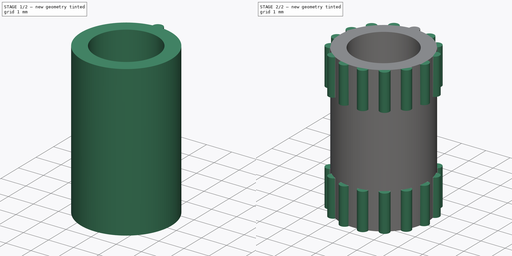
[diagram: build sequence overview — one tinted view per stage of 2, left to right]
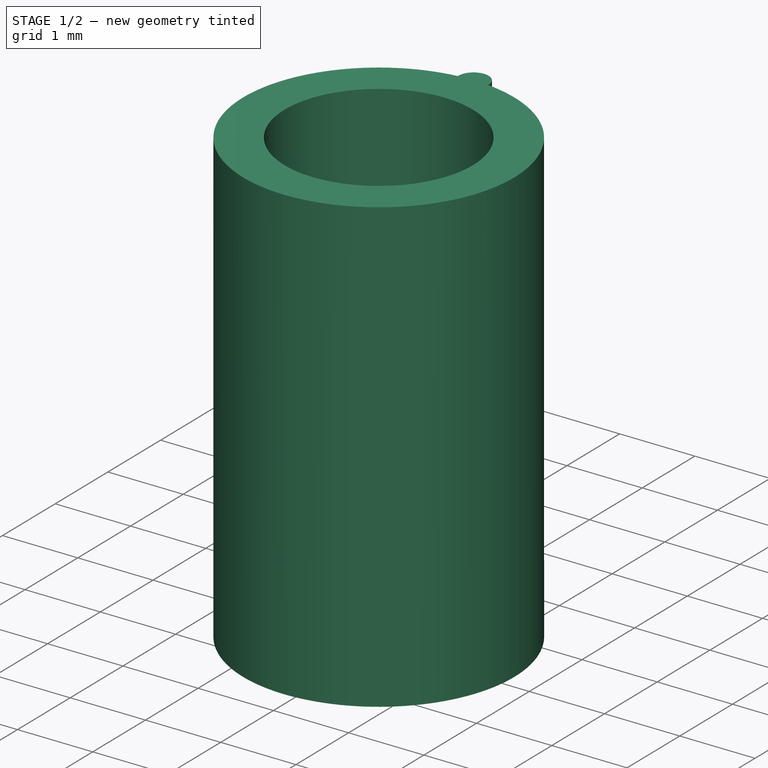
[diagram: stage 1 of 2 — iso view after this stage's code; geometry added in this stage tinted green]
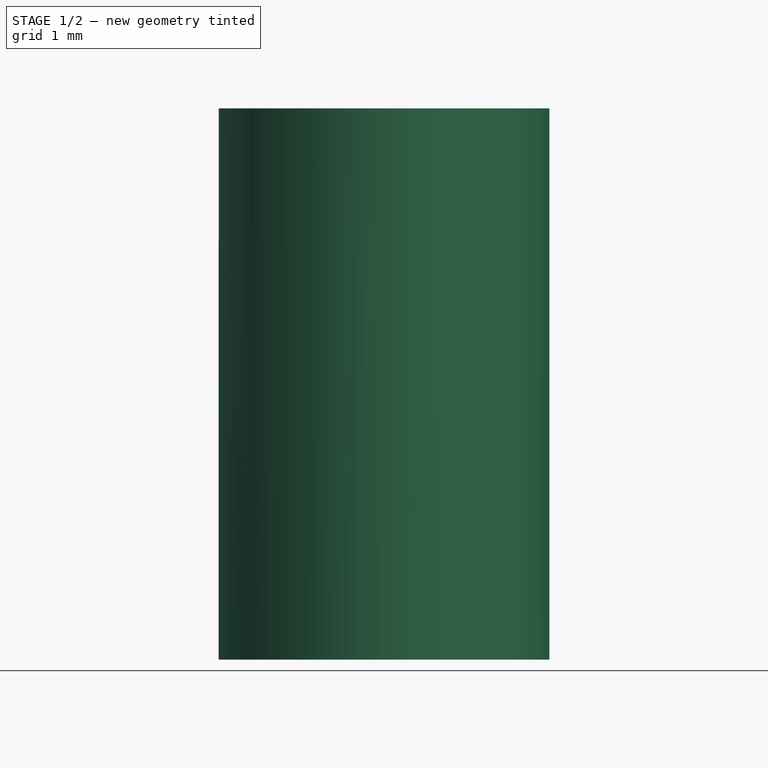
[diagram: stage 1 of 2 — front view after this stage's code; geometry added in this stage tinted green]
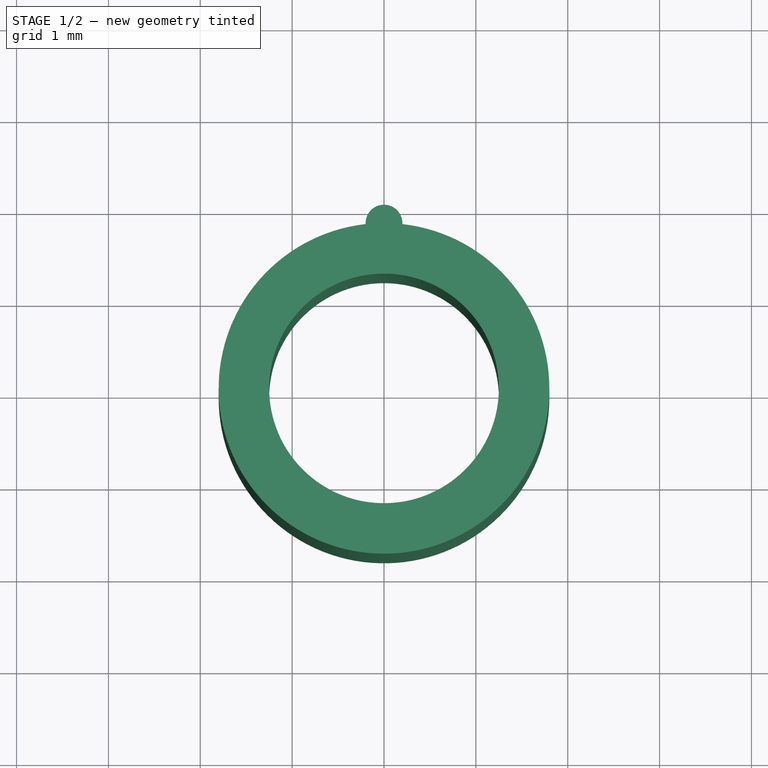
[diagram: stage 1 of 2 — top view after this stage's code; geometry added in this stage tinted green]
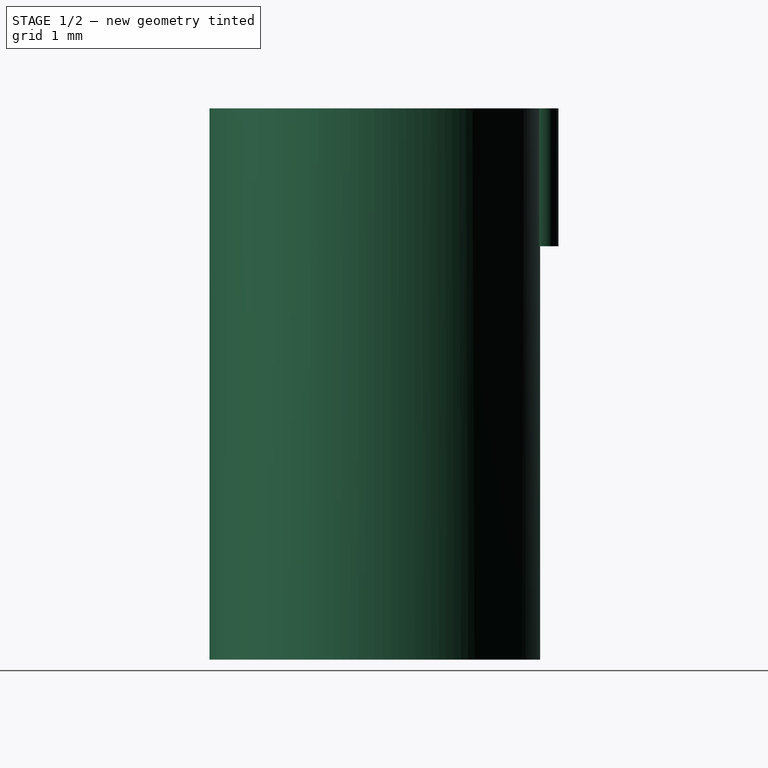
[diagram: stage 1 of 2 — right view after this stage's code; geometry added in this stage tinted green]
FCSTD DOCUMENT  (FreeCAD 0.21R38947 (Git))
Label: m3-threaded-insert
License: All rights reserved
LicenseURL: http://en.wikipedia.org/wiki/All_rights_reserved
objects: Sketcher::SketchObject×2, PartDesign::Pad×2, PartDesign::PolarPattern×1, PartDesign::Mirrored×1, PartDesign::MultiTransform×1, PartDesign::Body×1
note: 20 computed .brp shape members not serialized (recipe doc carries the construction recipe); baked Part::Feature solids carry a one-line shape summary decoded from their .brp

FEATURE [Sketcher::SketchObject] Sketch
  ArcFitTolerance = 0
  AttachmentSupport = -> [XY_Plane]
  ExternalBSplineMaxDegree = 0
  ExternalBSplineTolerance = 0
  FullyConstrained = true
  InternalTolerance = 1e-06
  InvalidShape = false
  MakeInternals = false
  MapMode = 5
  Support = -> [XY_Plane]
  TreeRank = 0
  ValidateShape = false
  sketch-geometry (2):
    g0: Circle CenterX=0 CenterY=0 CenterZ=0 NormalX=0 NormalY=0 NormalZ=1 AngleXU=0 Radius=1.8
    g1: Circle CenterX=0 CenterY=0 CenterZ=0 NormalX=0 NormalY=0 NormalZ=1 AngleXU=0 Radius=1.25
  constraints (4):
    c: Coincident(g0,g-1)
    c: Coincident(g1,g0)
    c: Diameter(g1) = 2.5
    c: Diameter(g0) = 3.6
FEATURE [PartDesign::Pad] Pad
  AddSubType = 0
  AutoTaperInnerAngle = true
  CheckUpToFaceLimits = true
  ClaimChildren = false
  Direction = (0,0,1)
  Fit = 0
  FitJoin = 0
  InnerFit = 0
  InnerFitJoin = 0
  InvalidShape = false
  Length = 3
  Length2 = 3
  NewSolid = false
  Profile = -> Sketch
  Suppress = false
  TaperInnerAngle = 0
  TaperInnerAngleRev = 0
  TreeRank = 0
  Type = 4
  ValidateShape = true
  _ProfileBasedVersion = 0
FEATURE [Sketcher::SketchObject] Sketch001
  ArcFitTolerance = 0
  AttachmentSupport = -> [Pad]
  ExternalBSplineMaxDegree = 0
  ExternalBSplineTolerance = 0
  ExternalGeometry = -> [Pad]
  FullyConstrained = true
  InternalTolerance = 1e-06
  InvalidShape = false
  MakeInternals = false
  MapMode = 5
  Placement = pos=(0,0,3) rot=(0,0,1;0rad)
  Support = -> [Pad]
  TreeRank = 0
  ValidateShape = false
  sketch-geometry (3):
    g0: Circle CenterX=0 CenterY=1.8 CenterZ=0 NormalX=0 NormalY=0 NormalZ=1 AngleXU=0 Radius=0.2
    g1: GeomPoint [constr] X=0 Y=2 Z=0
    g2: GeomPoint [constr] X=0 Y=-2 Z=0
  constraints (6):
    c: PointOnObject(g0,g-2)
    c: PointOnObject(g0,g-3)
    c: PointOnObject(g1,g-2)
    c: PointOnObject(g1,g0)
    c: Symmetric(g2,g1,g-1)
    c: DistanceY(g2,g1) = 4
FEATURE [PartDesign::Pad] Pad001
  AddSubType = 0
  AutoTaperInnerAngle = true
  BaseFeature = -> Pad
  CheckUpToFaceLimits = true
  ClaimChildren = false
  Direction = (0,0,1)
  Fit = 0
  FitJoin = 0
  InnerFit = 0
  InnerFitJoin = 0
  InvalidShape = false
  Length = 1.5
  Length2 = 100
  NewSolid = false
  Profile = -> Sketch001
  Refine = true
  Reversed = true
  Suppress = false
  TaperInnerAngle = 0
  TaperInnerAngleRev = 0
  TreeRank = 0
  Type = 0
  ValidateShape = true
  _ProfileBasedVersion = 0
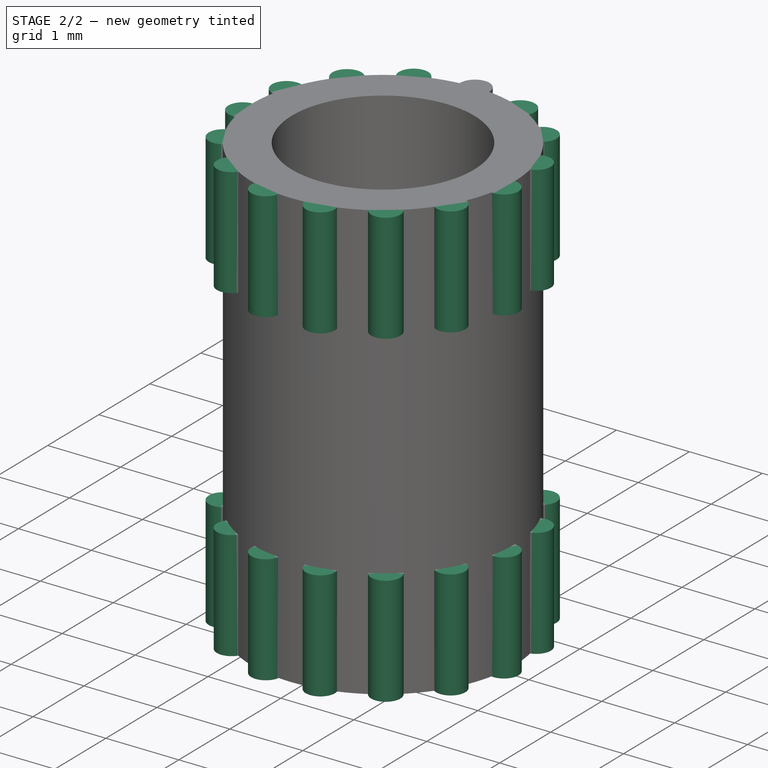
[diagram: stage 2 of 2 — iso view after this stage's code; geometry added in this stage tinted green]
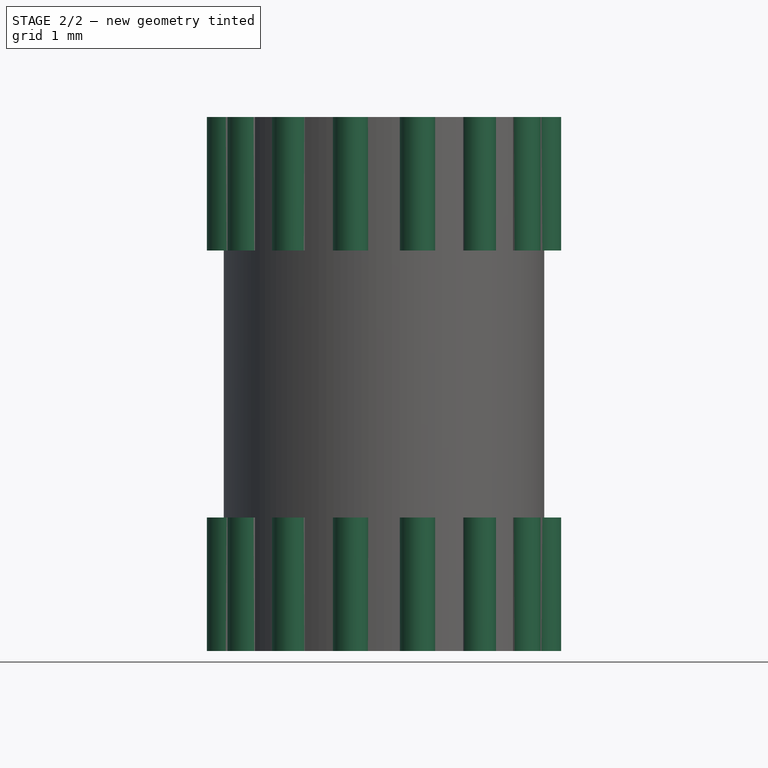
[diagram: stage 2 of 2 — front view after this stage's code; geometry added in this stage tinted green]
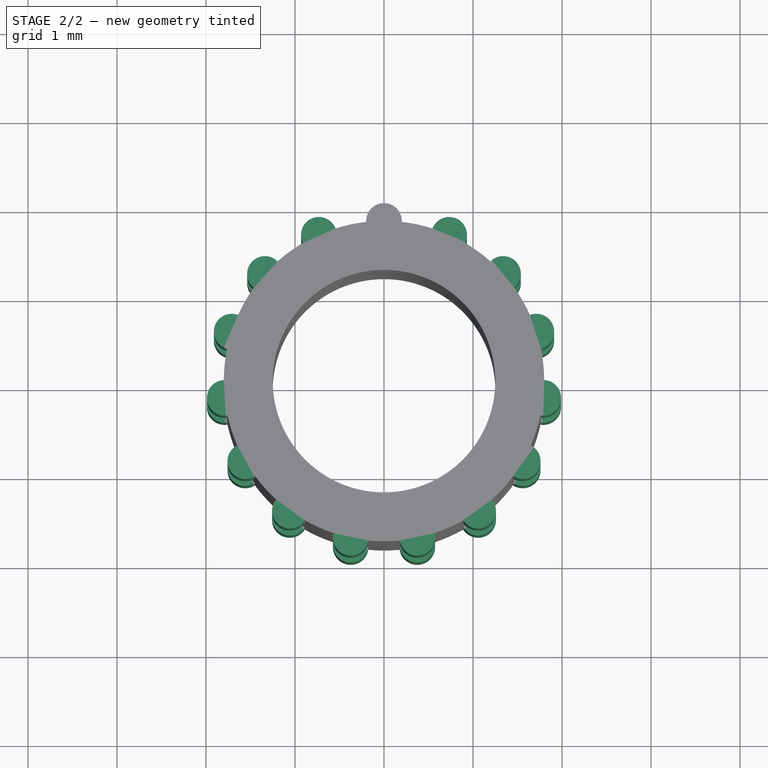
[diagram: stage 2 of 2 — top view after this stage's code; geometry added in this stage tinted green]
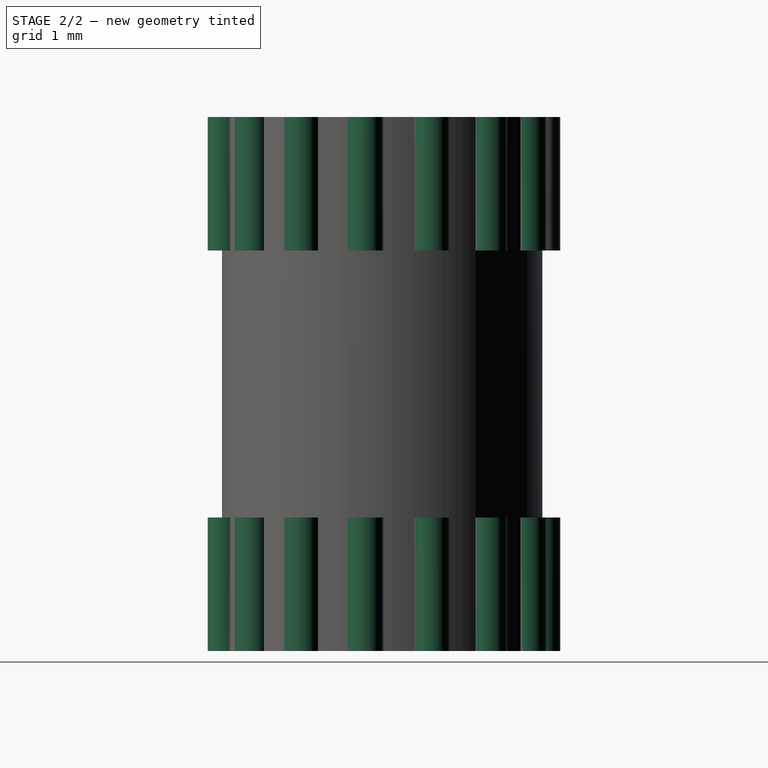
[diagram: stage 2 of 2 — right view after this stage's code; geometry added in this stage tinted green]
FEATURE [PartDesign::PolarPattern] PolarPattern
  AddSubType = 0
  Angle = 360
  Axis = -> Sketch001 [N_Axis]
  CopyShape = true
  InvalidShape = false
  NewSolid = false
  Occurrences = 15
  ParallelTransform = true
  SubTransform = true
  Suppress = false
  TreeRank = 0
  ValidateShape = true
  _Version = 0
FEATURE [PartDesign::Mirrored] Mirrored
  AddSubType = 0
  CopyShape = true
  InvalidShape = false
  MirrorPlane = -> XY_Plane
  NewSolid = false
  ParallelTransform = true
  SubTransform = true
  Suppress = false
  TreeRank = 0
  ValidateShape = true
  _Version = 0
FEATURE [PartDesign::MultiTransform] MultiTransform
  AddSubType = 0
  BaseFeature = -> Pad001
  CopyShape = true
  InvalidShape = false
  NewSolid = false
  OriginalSubs = -> [Pad001]
  Originals = -> [Pad001]
  ParallelTransform = true
  Refine = true
  SubTransform = true
  Suppress = false
  Transformations = -> [PolarPattern,Mirrored]
  TreeRank = 0
  ValidateShape = true
  _Version = 0
FEATURE [PartDesign::Body] Body  label="m3-threaded-insert"
  AutoGroupSolids = false
  ClaimAllChildren = false
  ExportMode = 0
  Group = -> [Sketch,Pad,Sketch001,Pad001,MultiTransform,PolarPattern,Mirrored]
  InvalidShape = false
  Origin = -> Origin
  Tip = -> MultiTransform
  TreeRank = 0
  ValidateShape = false
  _ExportChildren = -> [Pad,Pad001,MultiTransform]
  _GroupVersion = 1
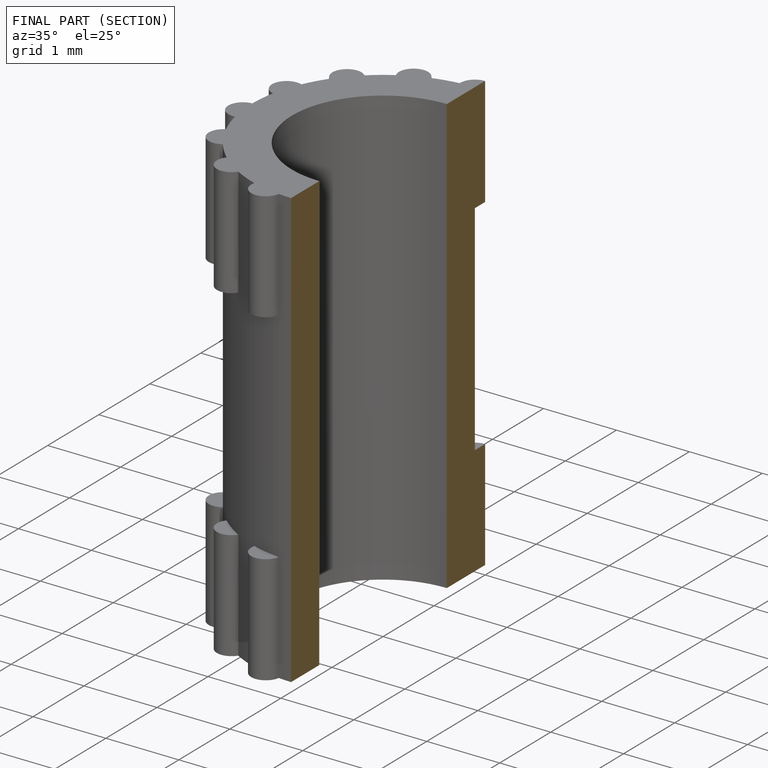
[diagram: finished part — half-section view (interior)]
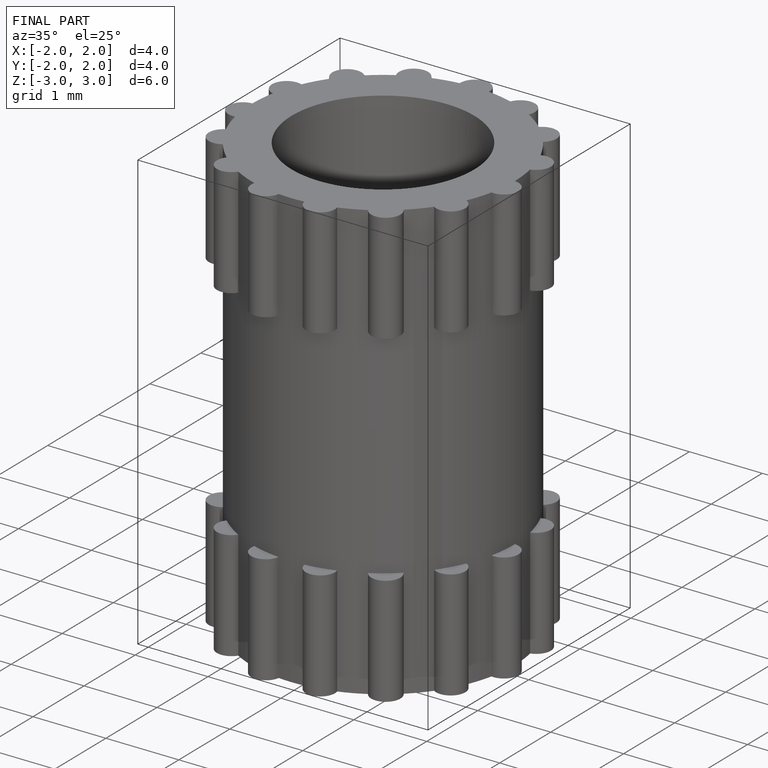
[diagram: finished part — iso view with bounding-box wireframe]
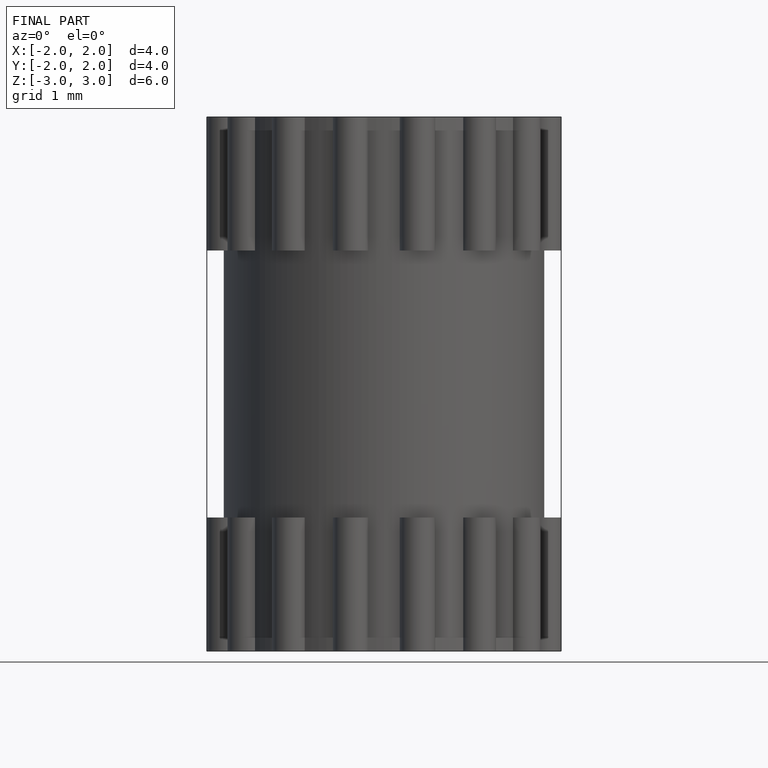
[diagram: finished part — front view with bounding-box wireframe]
